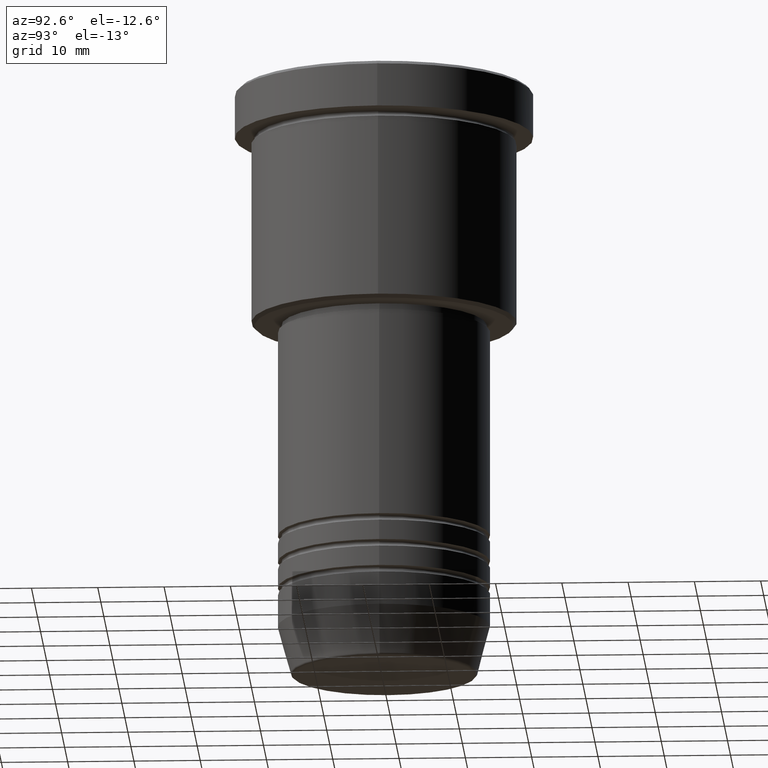
[diagram: clean part render]
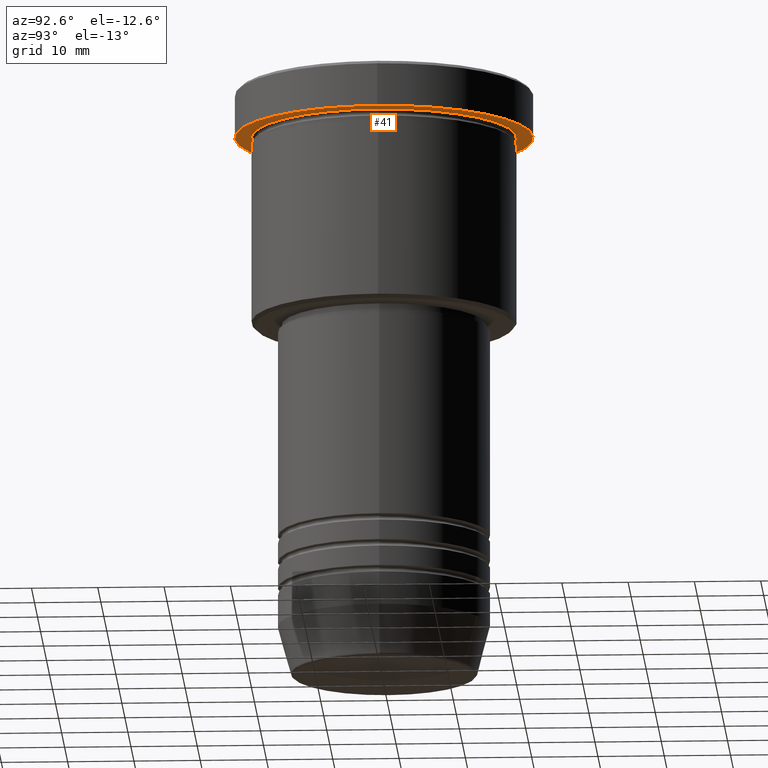
[diagram: same view with one face highlighted and labeled with its STEP entity id]
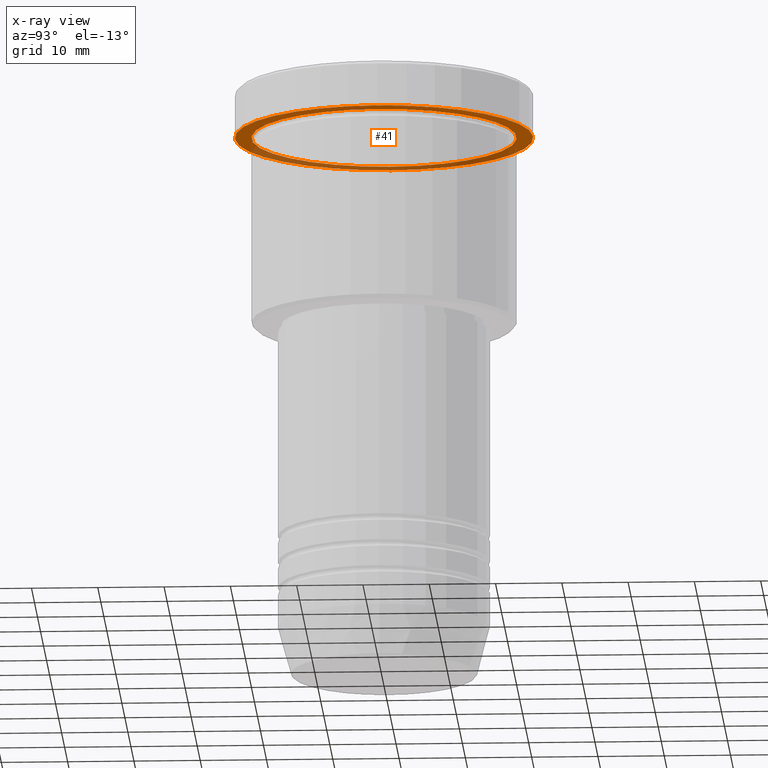
[diagram: x-ray of the same camera — body ghosted, the highlighted face saturated]
A machine part, auxiliary view. The second image highlights one B-rep face of the part: STEP entity #41.
The next image is the same camera in x-ray: the body ghosted, the highlighted face saturated — about 38% of this face is hidden behind the body in this view.
In plain terms, the highlighted planar face has unit normal (0, 0, -1).
Its self-contained STEP definition (entity closure, byte-faithful):
#41 = ADVANCED_FACE ( 'NONE', ( #107, #819 ), #566, .T. ) ;
#63 = VERTEX_POINT ( 'NONE', #90 ) ;
#70 = CARTESIAN_POINT ( 'NONE',  ( -20.00000000000000000, 0.000000000000000000, -6.999999999999995559 ) ) ;
#90 = CARTESIAN_POINT ( 'NONE',  ( 22.50000000000000000, 0.000000000000000000, -6.999999999999995559 ) ) ;
#99 = EDGE_CURVE ( 'NONE', #830, #63, #891, .T. ) ;
#102 = ORIENTED_EDGE ( 'NONE', *, *, #189, .T. ) ;
#107 = FACE_BOUND ( 'NONE', #961, .T. ) ;
#119 = CARTESIAN_POINT ( 'NONE',  ( 0.000000000000000000, 0.000000000000000000, -6.999999999999995559 ) ) ;
#159 = CARTESIAN_POINT ( 'NONE',  ( -22.50000000000000000, 2.755455298081544778E-15, -6.999999999999995559 ) ) ;
#163 = CARTESIAN_POINT ( 'NONE',  ( 0.000000000000000000, 0.000000000000000000, -6.999999999999995559 ) ) ;
#189 = EDGE_CURVE ( 'NONE', #230, #441, #1154, .T. ) ;
#196 = EDGE_CURVE ( 'NONE', #441, #230, #1175, .T. ) ;
#230 = VERTEX_POINT ( 'NONE', #70 ) ;
#236 = ORIENTED_EDGE ( 'NONE', *, *, #196, .T. ) ;
#354 = AXIS2_PLACEMENT_3D ( 'NONE', #422, #618, #1080 ) ;
#381 = DIRECTION ( 'NONE',  ( 0.000000000000000000, 0.000000000000000000, -1.000000000000000000 ) ) ;
#387 = DIRECTION ( 'NONE',  ( -1.000000000000000000, 0.000000000000000000, -0.000000000000000000 ) ) ;
#393 = DIRECTION ( 'NONE',  ( 1.000000000000000000, 0.000000000000000000, 0.000000000000000000 ) ) ;
#394 = DIRECTION ( 'NONE',  ( 1.000000000000000000, 0.000000000000000000, 0.000000000000000000 ) ) ;
#422 = CARTESIAN_POINT ( 'NONE',  ( 0.000000000000000000, 0.000000000000000000, -6.999999999999995559 ) ) ;
#441 = VERTEX_POINT ( 'NONE', #765 ) ;
#461 = ORIENTED_EDGE ( 'NONE', *, *, #973, .F. ) ;
#474 = CARTESIAN_POINT ( 'NONE',  ( 0.000000000000000000, 22.50000000000000000, -6.999999999999995559 ) ) ;
#477 = EDGE_LOOP ( 'NONE', ( #461, #592 ) ) ;
#501 = AXIS2_PLACEMENT_3D ( 'NONE', #163, #981, #790 ) ;
#566 = PLANE ( 'NONE',  #953 ) ;
#592 = ORIENTED_EDGE ( 'NONE', *, *, #99, .F. ) ;
#618 = DIRECTION ( 'NONE',  ( -0.000000000000000000, -0.000000000000000000, 1.000000000000000000 ) ) ;
#704 = AXIS2_PLACEMENT_3D ( 'NONE', #1017, #935, #394 ) ;
#765 = CARTESIAN_POINT ( 'NONE',  ( 20.00000000000000000, 2.449293598294706513E-15, -6.999999999999995559 ) ) ;
#790 = DIRECTION ( 'NONE',  ( -1.000000000000000000, 0.000000000000000000, 0.000000000000000000 ) ) ;
#819 = FACE_OUTER_BOUND ( 'NONE', #477, .T. ) ;
#830 = VERTEX_POINT ( 'NONE', #159 ) ;
#891 = CIRCLE ( 'NONE', #1051, 22.50000000000000000 ) ;
#935 = DIRECTION ( 'NONE',  ( -0.000000000000000000, -0.000000000000000000, 1.000000000000000000 ) ) ;
#953 = AXIS2_PLACEMENT_3D ( 'NONE', #474, #381, #387 ) ;
#961 = EDGE_LOOP ( 'NONE', ( #102, #236 ) ) ;
#973 = EDGE_CURVE ( 'NONE', #63, #830, #1086, .T. ) ;
#981 = DIRECTION ( 'NONE',  ( -0.000000000000000000, -0.000000000000000000, 1.000000000000000000 ) ) ;
#1017 = CARTESIAN_POINT ( 'NONE',  ( 0.000000000000000000, 0.000000000000000000, -6.999999999999995559 ) ) ;
#1040 = DIRECTION ( 'NONE',  ( -0.000000000000000000, -0.000000000000000000, 1.000000000000000000 ) ) ;
#1051 = AXIS2_PLACEMENT_3D ( 'NONE', #119, #1040, #393 ) ;
#1080 = DIRECTION ( 'NONE',  ( -1.000000000000000000, 0.000000000000000000, 0.000000000000000000 ) ) ;
#1086 = CIRCLE ( 'NONE', #704, 22.50000000000000000 ) ;
#1154 = CIRCLE ( 'NONE', #501, 20.00000000000000000 ) ;
#1175 = CIRCLE ( 'NONE', #354, 20.00000000000000000 ) ;